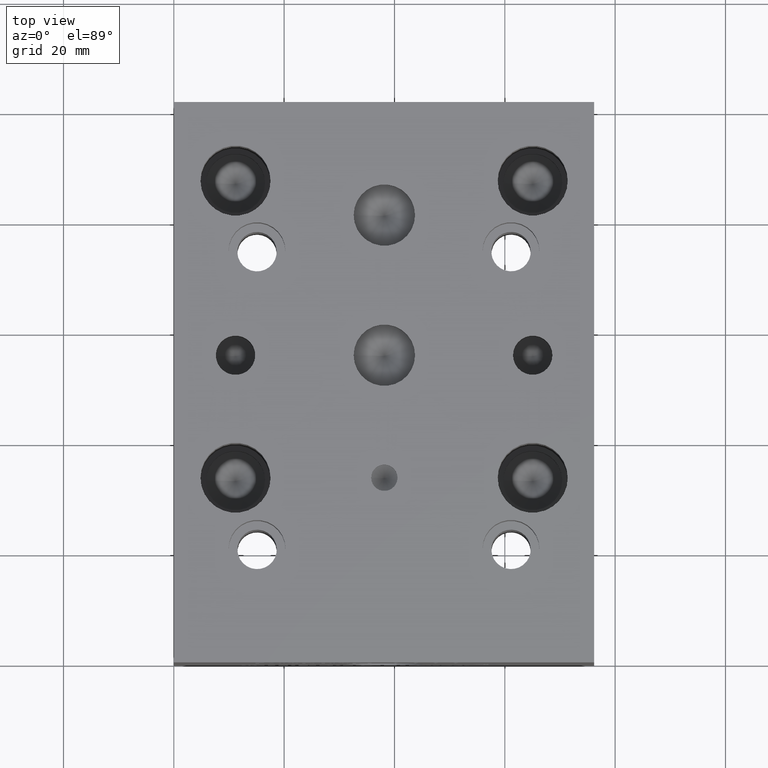
[diagram: clean part render]
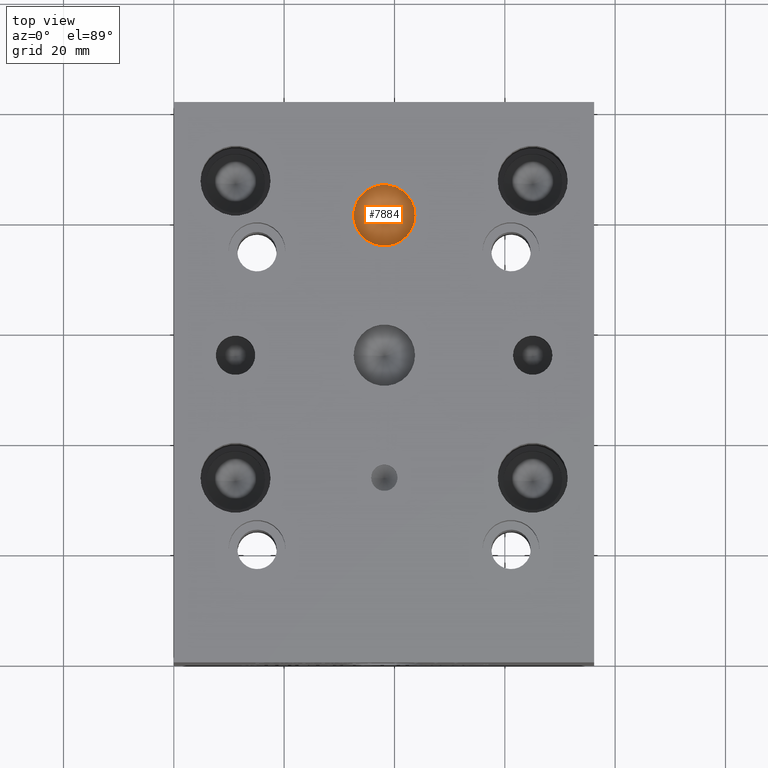
[diagram: same view with one face highlighted and labeled with its STEP entity id]
A machine part, top view. The second image highlights one B-rep face of the part: STEP entity #7884.
In plain terms, the highlighted conical surface has half-angle 60 deg.
Its self-contained STEP definition (entity closure, byte-faithful):
#19=CONICAL_SURFACE('',#8304,2.7813,1.0471975511966);
#732=CIRCLE('',#8305,5.5626);
#733=CIRCLE('',#8306,5.5626);
#1183=FACE_OUTER_BOUND('',#1633,.T.);
#1633=EDGE_LOOP('',(#7093,#7094,#7095,#7096));
#2449=LINE('',#13171,#3244);
#3244=VECTOR('',#9907,2.7813);
#3957=VERTEX_POINT('',#13167);
#3958=VERTEX_POINT('',#13168);
#3959=VERTEX_POINT('',#13170);
#5021=EDGE_CURVE('',#3957,#3958,#732,.T.);
#5022=EDGE_CURVE('',#3958,#3959,#2449,.T.);
#5023=EDGE_CURVE('',#3958,#3957,#733,.T.);
#7093=ORIENTED_EDGE('',*,*,#5021,.T.);
#7094=ORIENTED_EDGE('',*,*,#5022,.T.);
#7095=ORIENTED_EDGE('',*,*,#5022,.F.);
#7096=ORIENTED_EDGE('',*,*,#5023,.T.);
#7884=ADVANCED_FACE('',(#1183),#19,.F.);
#8304=AXIS2_PLACEMENT_3D('',#13166,#9903,#9904);
#8305=AXIS2_PLACEMENT_3D('',#13169,#9905,#9906);
#8306=AXIS2_PLACEMENT_3D('',#13172,#9908,#9909);
#9903=DIRECTION('center_axis',(0.,0.,1.));
#9904=DIRECTION('ref_axis',(1.,0.,0.));
#9905=DIRECTION('center_axis',(0.,0.,1.));
#9906=DIRECTION('ref_axis',(1.,0.,0.));
#9907=DIRECTION('',(0.866025403784439,1.06057523872491E-16,-0.5));
#9908=DIRECTION('center_axis',(0.,0.,1.));
#9909=DIRECTION('ref_axis',(1.,0.,0.));
#13166=CARTESIAN_POINT('Origin',(38.1508,81.0768,33.2826456963029));
#13167=CARTESIAN_POINT('',(43.7134,81.0768,34.88843));
#13168=CARTESIAN_POINT('',(32.5882,81.0768,34.88843));
#13169=CARTESIAN_POINT('Origin',(38.1508,81.0768,34.88843));
#13170=CARTESIAN_POINT('',(38.1508,81.0768,31.6768613926058));
#13171=CARTESIAN_POINT('',(35.3695,81.0768,33.2826456963029));
#13172=CARTESIAN_POINT('Origin',(38.1508,81.0768,34.88843));